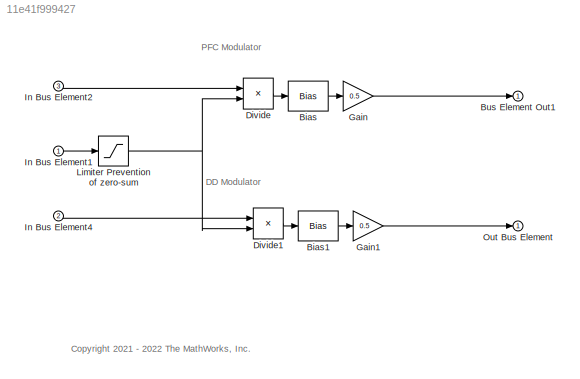
MODEL slx_11e41f999427
KIND model
BLOCK [Bias] Bias
  Bias = 1
  SaturateOnIntegerOverflow = off
BLOCK [Bias] Bias1
  Bias = 1
  SaturateOnIntegerOverflow = off
BLOCK [Outport] Bus Element Out1
BLOCK [Product] Divide
  Inputs = */
BLOCK [Product] Divide1
  Inputs = */
BLOCK [Gain] Gain
  Gain = 0.5
BLOCK [Gain] Gain1
  Gain = 0.5
BLOCK [Inport] In Bus Element1
BLOCK [Inport] In Bus Element2
  Port = 3
BLOCK [Inport] In Bus Element4
  Port = 2
BLOCK [Saturate] Limiter Prevention of zero-sum
  LowerLimit = 300
  UpperLimit = inf
BLOCK [Outport] Out Bus Element
ANNOTATION (root): <copyright redacted>
ANNOTATION (root): DD Modulator
ANNOTATION (root): PFC Modulator
LINE Bias1:1 -> Gain1:1
LINE Bias:1 -> Gain:1
LINE Divide1:1 -> Bias1:1
LINE Divide:1 -> Bias:1
LINE Gain1:1 -> Out Bus Element:1
LINE Gain:1 -> Bus Element Out1:1
LINE In Bus Element1:1 -> Limiter Prevention of zero-sum:1
LINE In Bus Element2:1 -> Divide:1
LINE In Bus Element4:1 -> Divide1:1
NET Limiter Prevention of zero-sum:1 -> Divide1:2, Divide:2
note: NET lines group one-source signal fan-out (src -> all destinations, sorted); 1:1 wires keep LINE
